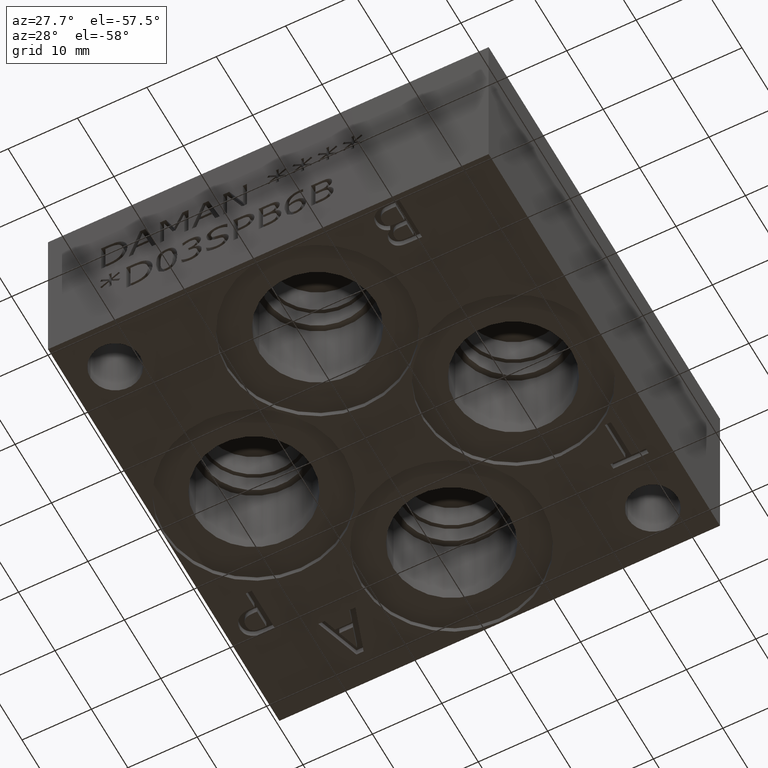
[diagram: clean part render]
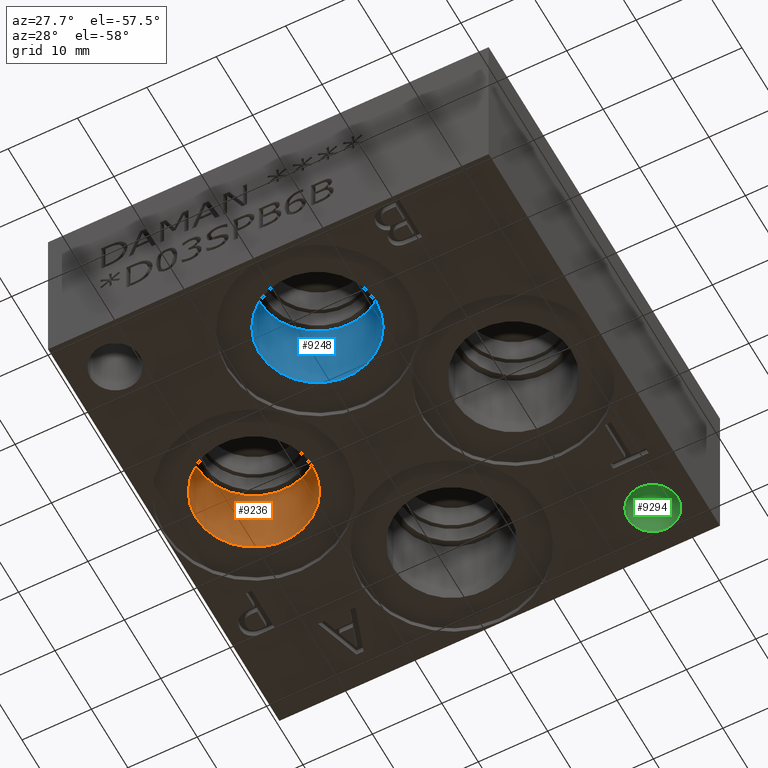
[diagram: same view with three faces highlighted in distinct colors, each labeled with its STEP entity id]
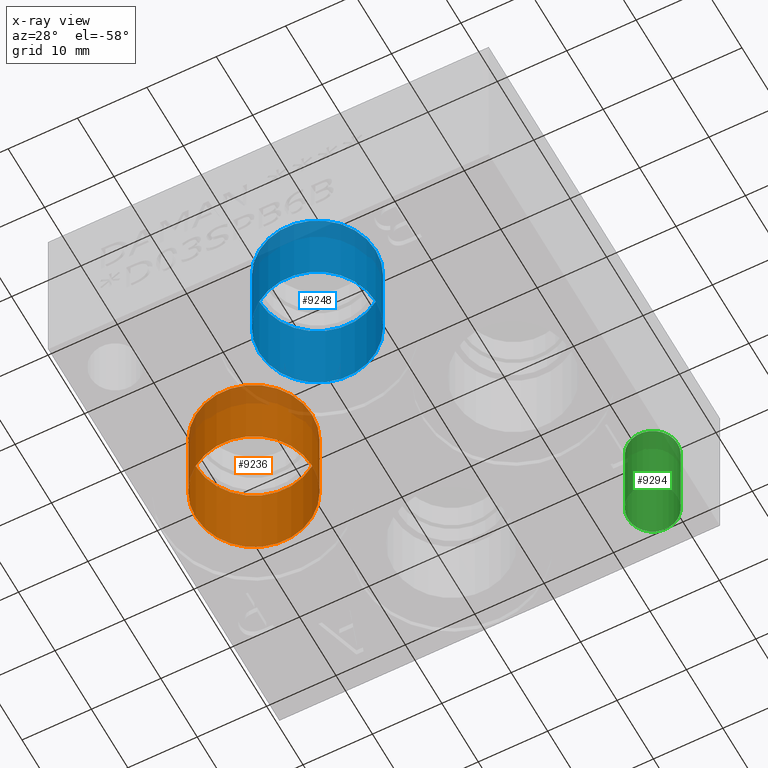
[diagram: x-ray of the same camera — body ghosted, the three highlighted faces saturated]
A machine part, auxiliary view with three faces highlighted in distinct colors.
The next image is the same camera in x-ray (body ghosted, the three faces saturated) — at least one of them is partly hidden behind the body in this view.
Their STEP definitions:

[orange] entity #9236 — the highlighted cylindrical surface (bore or boss wall) has radius 8.382 mm, axis along (0, 0, 1).
#32=CYLINDRICAL_SURFACE('',#9597,8.382);
#76=CIRCLE('',#9595,8.382);
#77=CIRCLE('',#9596,8.382);
#78=CIRCLE('',#9598,8.382);
#79=CIRCLE('',#9599,8.382);
#940=FACE_OUTER_BOUND('',#1457,.T.);
#1457=EDGE_LOOP('',(#7960,#7961,#7962,#7963,#7964,#7965));
#2375=LINE('',#15659,#3255);
#3255=VECTOR('',#11159,8.382);
#4339=VERTEX_POINT('',#15653);
#4340=VERTEX_POINT('',#15654);
#4341=VERTEX_POINT('',#15658);
#4342=VERTEX_POINT('',#15660);
#5580=EDGE_CURVE('',#4339,#4340,#76,.T.);
#5581=EDGE_CURVE('',#4340,#4339,#77,.T.);
#5582=EDGE_CURVE('',#4340,#4341,#2375,.T.);
#5583=EDGE_CURVE('',#4341,#4342,#78,.T.);
#5584=EDGE_CURVE('',#4342,#4341,#79,.T.);
#7960=ORIENTED_EDGE('',*,*,#5580,.F.);
#7961=ORIENTED_EDGE('',*,*,#5581,.F.);
#7962=ORIENTED_EDGE('',*,*,#5582,.T.);
#7963=ORIENTED_EDGE('',*,*,#5583,.T.);
#7964=ORIENTED_EDGE('',*,*,#5584,.T.);
#7965=ORIENTED_EDGE('',*,*,#5582,.F.);
#9236=ADVANCED_FACE('',(#940),#32,.F.);
#9595=AXIS2_PLACEMENT_3D('',#15655,#11153,#11154);
#9596=AXIS2_PLACEMENT_3D('',#15656,#11155,#11156);
#9597=AXIS2_PLACEMENT_3D('',#15657,#11157,#11158);
#9598=AXIS2_PLACEMENT_3D('',#15661,#11160,#11161);
#9599=AXIS2_PLACEMENT_3D('',#15662,#11162,#11163);
#11153=DIRECTION('center_axis',(0.,0.,1.));
#11154=DIRECTION('ref_axis',(1.,0.,0.));
#11155=DIRECTION('center_axis',(0.,0.,1.));
#11156=DIRECTION('ref_axis',(1.,0.,0.));
#11157=DIRECTION('center_axis',(0.,0.,1.));
#11158=DIRECTION('ref_axis',(1.,0.,0.));
#11159=DIRECTION('',(0.,0.,1.));
#11160=DIRECTION('center_axis',(0.,0.,1.));
#11161=DIRECTION('ref_axis',(1.,0.,0.));
#11162=DIRECTION('center_axis',(0.,0.,1.));
#11163=DIRECTION('ref_axis',(1.,0.,0.));
#15653=CARTESIAN_POINT('',(21.3868,31.75,0.7874));
#15654=CARTESIAN_POINT('',(4.6228,31.75,0.7874));
#15655=CARTESIAN_POINT('Origin',(13.0048,31.75,0.7874));
#15656=CARTESIAN_POINT('Origin',(13.0048,31.75,0.7874));
#15657=CARTESIAN_POINT('Origin',(13.0048,31.75,6.8834));
#15658=CARTESIAN_POINT('',(4.6228,31.75,12.9794));
#15659=CARTESIAN_POINT('',(4.6228,31.75,6.8834));
#15660=CARTESIAN_POINT('',(21.3868,31.75,12.9794));
#15661=CARTESIAN_POINT('Origin',(13.0048,31.75,12.9794));
#15662=CARTESIAN_POINT('Origin',(13.0048,31.75,12.9794));

[blue] entity #9248 — the highlighted cylindrical surface (bore or boss wall) has radius 8.382 mm, axis along (0, 0, 1).
#38=CYLINDRICAL_SURFACE('',#9631,8.382);
#98=CIRCLE('',#9629,8.382);
#99=CIRCLE('',#9630,8.382);
#100=CIRCLE('',#9632,8.382);
#101=CIRCLE('',#9633,8.382);
#952=FACE_OUTER_BOUND('',#1473,.T.);
#1473=EDGE_LOOP('',(#8022,#8023,#8024,#8025,#8026,#8027));
#2383=LINE('',#15723,#3263);
#3263=VECTOR('',#11235,8.382);
#4361=VERTEX_POINT('',#15717);
#4362=VERTEX_POINT('',#15718);
#4363=VERTEX_POINT('',#15722);
#4364=VERTEX_POINT('',#15724);
#5610=EDGE_CURVE('',#4361,#4362,#98,.T.);
#5611=EDGE_CURVE('',#4362,#4361,#99,.T.);
#5612=EDGE_CURVE('',#4362,#4363,#2383,.T.);
#5613=EDGE_CURVE('',#4363,#4364,#100,.T.);
#5614=EDGE_CURVE('',#4364,#4363,#101,.T.);
#8022=ORIENTED_EDGE('',*,*,#5610,.F.);
#8023=ORIENTED_EDGE('',*,*,#5611,.F.);
#8024=ORIENTED_EDGE('',*,*,#5612,.T.);
#8025=ORIENTED_EDGE('',*,*,#5613,.T.);
#8026=ORIENTED_EDGE('',*,*,#5614,.T.);
#8027=ORIENTED_EDGE('',*,*,#5612,.F.);
#9248=ADVANCED_FACE('',(#952),#38,.F.);
#9629=AXIS2_PLACEMENT_3D('',#15719,#11229,#11230);
#9630=AXIS2_PLACEMENT_3D('',#15720,#11231,#11232);
#9631=AXIS2_PLACEMENT_3D('',#15721,#11233,#11234);
#9632=AXIS2_PLACEMENT_3D('',#15725,#11236,#11237);
#9633=AXIS2_PLACEMENT_3D('',#15726,#11238,#11239);
#11229=DIRECTION('center_axis',(0.,0.,1.));
#11230=DIRECTION('ref_axis',(1.,0.,0.));
#11231=DIRECTION('center_axis',(0.,0.,1.));
#11232=DIRECTION('ref_axis',(1.,0.,0.));
#11233=DIRECTION('center_axis',(0.,0.,1.));
#11234=DIRECTION('ref_axis',(1.,0.,0.));
#11235=DIRECTION('',(0.,0.,1.));
#11236=DIRECTION('center_axis',(0.,0.,1.));
#11237=DIRECTION('ref_axis',(1.,0.,0.));
#11238=DIRECTION('center_axis',(0.,0.,1.));
#11239=DIRECTION('ref_axis',(1.,0.,0.));
#15717=CARTESIAN_POINT('',(40.132,13.4874,0.7874));
#15718=CARTESIAN_POINT('',(23.368,13.4874,0.7874));
#15719=CARTESIAN_POINT('Origin',(31.75,13.4874,0.7874));
#15720=CARTESIAN_POINT('Origin',(31.75,13.4874,0.7874));
#15721=CARTESIAN_POINT('Origin',(31.75,13.4874,6.8834));
#15722=CARTESIAN_POINT('',(23.368,13.4874,12.9794));
#15723=CARTESIAN_POINT('',(23.368,13.4874,6.8834));
#15724=CARTESIAN_POINT('',(40.132,13.4874,12.9794));
#15725=CARTESIAN_POINT('Origin',(31.75,13.4874,12.9794));
#15726=CARTESIAN_POINT('Origin',(31.75,13.4874,12.9794));

[green] entity #9294 — the highlighted cylindrical surface (bore or boss wall) has radius 3.5687 mm, axis along (0, 0, 1).
#61=CYLINDRICAL_SURFACE('',#9756,3.5687);
#72=CIRCLE('',#9554,3.5687);
#176=CIRCLE('',#9752,3.5687);
#998=FACE_OUTER_BOUND('',#1527,.T.);
#1527=EDGE_LOOP('',(#8241,#8242,#8243,#8244));
#2421=LINE('',#15977,#3301);
#3301=VECTOR('',#11523,3.5687);
#4257=VERTEX_POINT('',#15212);
#4452=VERTEX_POINT('',#15968);
#5454=EDGE_CURVE('',#4257,#4257,#72,.T.);
#5725=EDGE_CURVE('',#4452,#4452,#176,.T.);
#5729=EDGE_CURVE('',#4452,#4257,#2421,.T.);
#8241=ORIENTED_EDGE('',*,*,#5725,.T.);
#8242=ORIENTED_EDGE('',*,*,#5729,.T.);
#8243=ORIENTED_EDGE('',*,*,#5454,.F.);
#8244=ORIENTED_EDGE('',*,*,#5729,.F.);
#9294=ADVANCED_FACE('',(#998),#61,.F.);
#9554=AXIS2_PLACEMENT_3D('',#15213,#10977,#10978);
#9752=AXIS2_PLACEMENT_3D('',#15969,#11512,#11513);
#9756=AXIS2_PLACEMENT_3D('',#15976,#11521,#11522);
#10977=DIRECTION('center_axis',(0.,0.,1.));
#10978=DIRECTION('ref_axis',(1.,0.,0.));
#11512=DIRECTION('center_axis',(0.,0.,1.));
#11513=DIRECTION('ref_axis',(1.,0.,0.));
#11521=DIRECTION('center_axis',(0.,0.,1.));
#11522=DIRECTION('ref_axis',(1.,0.,0.));
#11523=DIRECTION('',(0.,0.,-1.));
#15212=CARTESIAN_POINT('',(53.5813,57.15,0.));
#15213=CARTESIAN_POINT('Origin',(57.15,57.15,0.));
#15968=CARTESIAN_POINT('',(53.5813,57.15,12.7));
#15969=CARTESIAN_POINT('Origin',(57.15,57.15,12.7));
#15976=CARTESIAN_POINT('Origin',(57.15,57.15,-67.9255592000391));
#15977=CARTESIAN_POINT('',(53.5813,57.15,-67.9255592000391));